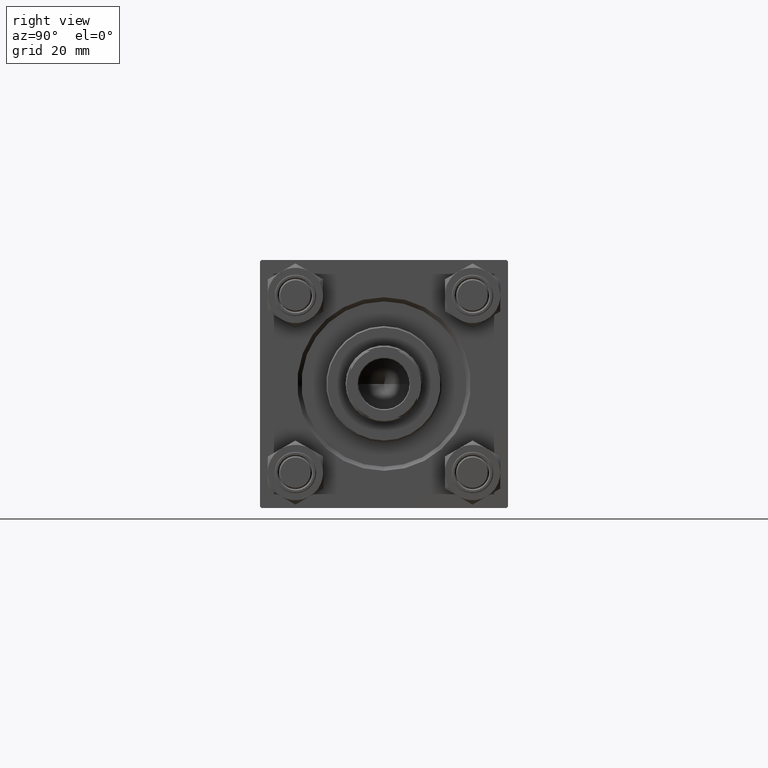
[diagram: clean part render]
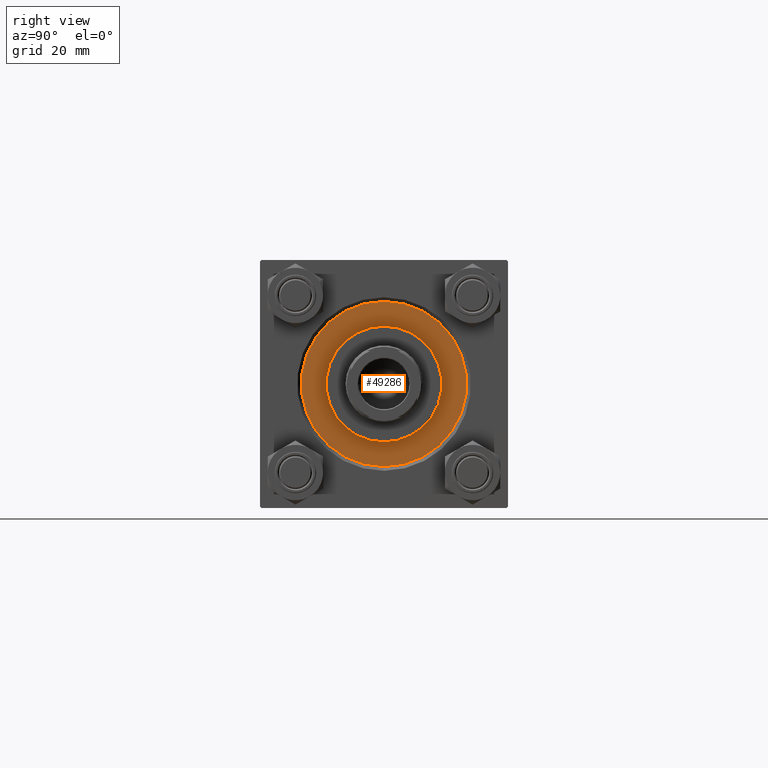
[diagram: same view with one face highlighted and labeled with its STEP entity id]
A machine part, right view. The second image highlights one B-rep face of the part: STEP entity #49286.
In plain terms, the highlighted planar face has unit normal (1, 0, -0).
Its self-contained STEP definition (entity closure, byte-faithful):
#400 = CARTESIAN_POINT ( 'NONE',  ( 0.000000000000000000, 0.000000000000000000, 28.69999999999999929 ) ) ;
#4689 = DIRECTION ( 'NONE',  ( 0.000000000000000000, 0.000000000000000000, 1.000000000000000000 ) ) ;
#6591 = CIRCLE ( 'NONE', #7400, 30.00000000000000000 ) ;
#6751 = EDGE_LOOP ( 'NONE', ( #13748, #31535 ) ) ;
#7035 = EDGE_CURVE ( 'NONE', #27640, #22477, #24255, .T. ) ;
#7173 = EDGE_CURVE ( 'NONE', #47384, #30087, #6591, .T. ) ;
#7400 = AXIS2_PLACEMENT_3D ( 'NONE', #39918, #4689, #9431 ) ;
#9431 = DIRECTION ( 'NONE',  ( 1.000000000000000000, 0.000000000000000000, 0.000000000000000000 ) ) ;
#11005 = DIRECTION ( 'NONE',  ( 0.000000000000000000, 0.000000000000000000, 1.000000000000000000 ) ) ;
#11721 = FACE_BOUND ( 'NONE', #45120, .T. ) ;
#13748 = ORIENTED_EDGE ( 'NONE', *, *, #7173, .T. ) ;
#14985 = CARTESIAN_POINT ( 'NONE',  ( 0.000000000000000000, 0.000000000000000000, 28.69999999999999929 ) ) ;
#15733 = DIRECTION ( 'NONE',  ( 1.000000000000000000, 0.000000000000000000, -0.000000000000000000 ) ) ;
#15875 = CARTESIAN_POINT ( 'NONE',  ( -21.00000000000000000, 0.000000000000000000, 28.69999999999999929 ) ) ;
#16216 = DIRECTION ( 'NONE',  ( 0.000000000000000000, 0.000000000000000000, 1.000000000000000000 ) ) ;
#16659 = AXIS2_PLACEMENT_3D ( 'NONE', #19206, #39322, #23958 ) ;
#17994 = ORIENTED_EDGE ( 'NONE', *, *, #7035, .F. ) ;
#19206 = CARTESIAN_POINT ( 'NONE',  ( 0.000000000000000000, 0.000000000000000000, 28.69999999999999929 ) ) ;
#19528 = PLANE ( 'NONE',  #44073 ) ;
#19561 = DIRECTION ( 'NONE',  ( 1.000000000000000000, 0.000000000000000000, 0.000000000000000000 ) ) ;
#19770 = FACE_OUTER_BOUND ( 'NONE', #6751, .T. ) ;
#20693 = CIRCLE ( 'NONE', #27162, 30.00000000000000000 ) ;
#22477 = VERTEX_POINT ( 'NONE', #49502 ) ;
#23958 = DIRECTION ( 'NONE',  ( 1.000000000000000000, 0.000000000000000000, 0.000000000000000000 ) ) ;
#24255 = CIRCLE ( 'NONE', #37941, 21.00000000000000000 ) ;
#27162 = AXIS2_PLACEMENT_3D ( 'NONE', #14985, #30366, #34404 ) ;
#27640 = VERTEX_POINT ( 'NONE', #15875 ) ;
#30087 = VERTEX_POINT ( 'NONE', #31598 ) ;
#30366 = DIRECTION ( 'NONE',  ( 0.000000000000000000, 0.000000000000000000, 1.000000000000000000 ) ) ;
#31535 = ORIENTED_EDGE ( 'NONE', *, *, #48364, .T. ) ;
#31598 = CARTESIAN_POINT ( 'NONE',  ( 30.00000000000000000, 3.673940397442059178E-15, 28.69999999999999929 ) ) ;
#34194 = CARTESIAN_POINT ( 'NONE',  ( 0.000000000000000000, 0.000000000000000000, 28.69999999999999929 ) ) ;
#34390 = CARTESIAN_POINT ( 'NONE',  ( -30.00000000000000000, 0.000000000000000000, 28.69999999999999929 ) ) ;
#34404 = DIRECTION ( 'NONE',  ( 1.000000000000000000, 0.000000000000000000, 0.000000000000000000 ) ) ;
#37626 = CIRCLE ( 'NONE', #16659, 21.00000000000000000 ) ;
#37941 = AXIS2_PLACEMENT_3D ( 'NONE', #34194, #11005, #19561 ) ;
#38096 = ORIENTED_EDGE ( 'NONE', *, *, #48646, .F. ) ;
#39322 = DIRECTION ( 'NONE',  ( 0.000000000000000000, 0.000000000000000000, 1.000000000000000000 ) ) ;
#39918 = CARTESIAN_POINT ( 'NONE',  ( 0.000000000000000000, 0.000000000000000000, 28.69999999999999929 ) ) ;
#44073 = AXIS2_PLACEMENT_3D ( 'NONE', #400, #16216, #15733 ) ;
#45120 = EDGE_LOOP ( 'NONE', ( #17994, #38096 ) ) ;
#47384 = VERTEX_POINT ( 'NONE', #34390 ) ;
#48364 = EDGE_CURVE ( 'NONE', #30087, #47384, #20693, .T. ) ;
#48646 = EDGE_CURVE ( 'NONE', #22477, #27640, #37626, .T. ) ;
#49286 = ADVANCED_FACE ( 'NONE', ( #11721, #19770 ), #19528, .T. ) ;
#49502 = CARTESIAN_POINT ( 'NONE',  ( 21.00000000000000000, 2.571758278209441661E-15, 28.69999999999999929 ) ) ;